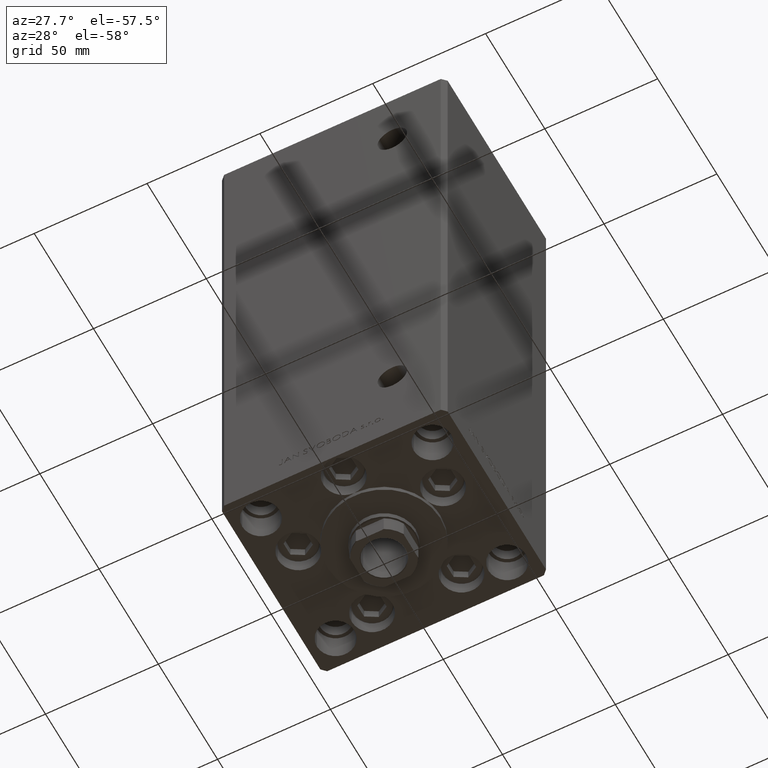
[diagram: clean part render]
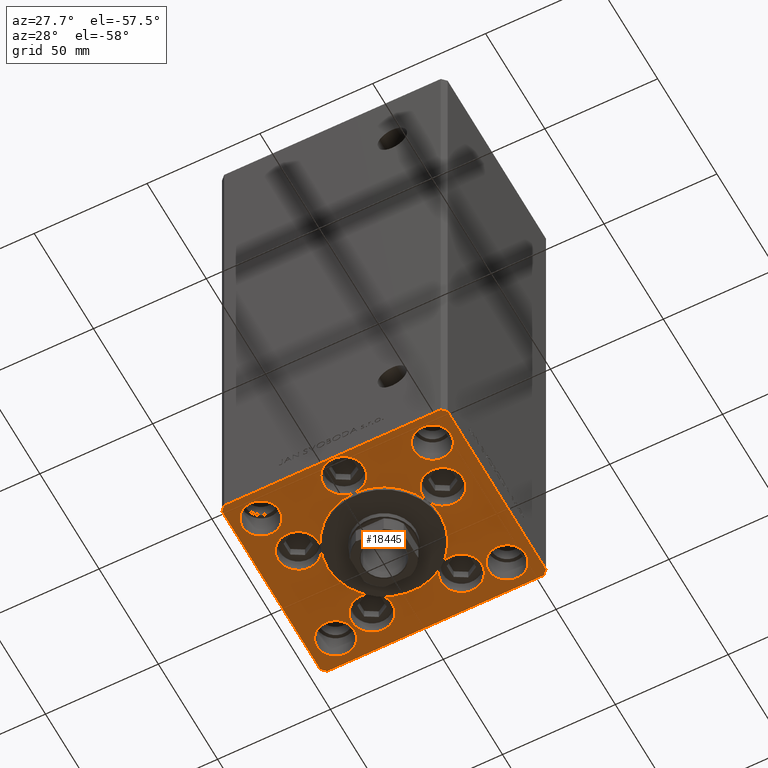
[diagram: same view with one face highlighted and labeled with its STEP entity id]
A machine part, auxiliary view. The second image highlights one B-rep face of the part: STEP entity #18445.
In plain terms, the highlighted planar face has unit normal (0, 0, -1).
Its self-contained STEP definition (entity closure, byte-faithful):
#64 = CIRCLE ( 'NONE', #48585, 8.249999999999992895 ) ;
#160 = DIRECTION ( 'NONE',  ( 1.000000000000000000, 0.000000000000000000, 0.000000000000000000 ) ) ;
#270 = EDGE_CURVE ( 'NONE', #10682, #41401, #22872, .T. ) ;
#281 = ORIENTED_EDGE ( 'NONE', *, *, #2251, .F. ) ;
#483 = AXIS2_PLACEMENT_3D ( 'NONE', #46552, #27812, #11872 ) ;
#734 = ORIENTED_EDGE ( 'NONE', *, *, #19136, .F. ) ;
#881 = DIRECTION ( 'NONE',  ( 1.000000000000000000, 0.000000000000000000, 0.000000000000000000 ) ) ;
#1264 = AXIS2_PLACEMENT_3D ( 'NONE', #26358, #42806, #26855 ) ;
#1385 = ORIENTED_EDGE ( 'NONE', *, *, #9386, .F. ) ;
#1553 = AXIS2_PLACEMENT_3D ( 'NONE', #33068, #48526, #17142 ) ;
#2085 = DIRECTION ( 'NONE',  ( 1.000000000000000000, 0.000000000000000000, 0.000000000000000000 ) ) ;
#2251 = EDGE_CURVE ( 'NONE', #31070, #27313, #64, .T. ) ;
#2559 = CARTESIAN_POINT ( 'NONE',  ( 46.25000000000000000, 31.50000000000000000, 0.000000000000000000 ) ) ;
#2565 = LINE ( 'NONE', #48651, #4116 ) ;
#2703 = VERTEX_POINT ( 'NONE', #12143 ) ;
#2714 = DIRECTION ( 'NONE',  ( 0.000000000000000000, 0.000000000000000000, 1.000000000000000000 ) ) ;
#3149 = EDGE_LOOP ( 'NONE', ( #34790, #3170 ) ) ;
#3170 = ORIENTED_EDGE ( 'NONE', *, *, #48667, .F. ) ;
#3205 = EDGE_CURVE ( 'NONE', #13295, #39459, #4815, .T. ) ;
#3244 = DIRECTION ( 'NONE',  ( 0.000000000000000000, 1.000000000000000000, 0.000000000000000000 ) ) ;
#3264 = DIRECTION ( 'NONE',  ( 0.000000000000000000, 0.000000000000000000, 1.000000000000000000 ) ) ;
#3287 = ORIENTED_EDGE ( 'NONE', *, *, #40171, .F. ) ;
#3339 = CARTESIAN_POINT ( 'NONE',  ( 38.00000000000000000, 31.50000000000000000, 0.000000000000000000 ) ) ;
#3362 = DIRECTION ( 'NONE',  ( -0.7071067811865536790, -0.7071067811865414665, 0.000000000000000000 ) ) ;
#3665 = CIRCLE ( 'NONE', #1264, 9.000000000000000000 ) ;
#3706 = VERTEX_POINT ( 'NONE', #22203 ) ;
#3876 = VERTEX_POINT ( 'NONE', #5441 ) ;
#3879 = ORIENTED_EDGE ( 'NONE', *, *, #40721, .F. ) ;
#3932 = CIRCLE ( 'NONE', #9580, 25.00000000000000000 ) ;
#4116 = VECTOR ( 'NONE', #17519, 1000.000000000000114 ) ;
#4162 = CARTESIAN_POINT ( 'NONE',  ( 0.000000000000000000, -6.938893903907228378E-15, 0.000000000000000000 ) ) ;
#4265 = EDGE_CURVE ( 'NONE', #28788, #43217, #7235, .T. ) ;
#4402 = AXIS2_PLACEMENT_3D ( 'NONE', #45481, #2714, #10806 ) ;
#4594 = DIRECTION ( 'NONE',  ( 1.000000000000000000, 0.000000000000000000, 0.000000000000000000 ) ) ;
#4632 = VERTEX_POINT ( 'NONE', #9136 ) ;
#4772 = CIRCLE ( 'NONE', #1553, 8.249999999999992895 ) ;
#4815 = CIRCLE ( 'NONE', #33122, 9.000000000000001776 ) ;
#4825 = ORIENTED_EDGE ( 'NONE', *, *, #3205, .F. ) ;
#4874 = AXIS2_PLACEMENT_3D ( 'NONE', #42002, #14423, #10865 ) ;
#4888 = EDGE_CURVE ( 'NONE', #5188, #3876, #26674, .T. ) ;
#4913 = CIRCLE ( 'NONE', #25958, 8.250000000000000000 ) ;
#5188 = VERTEX_POINT ( 'NONE', #48692 ) ;
#5206 = AXIS2_PLACEMENT_3D ( 'NONE', #31283, #38884, #160 ) ;
#5408 = VECTOR ( 'NONE', #9145, 1000.000000000000000 ) ;
#5441 = CARTESIAN_POINT ( 'NONE',  ( 14.57402977045128623, 20.31249999999998579, 0.000000000000000000 ) ) ;
#5526 = CARTESIAN_POINT ( 'NONE',  ( -29.75000000000000000, 31.50000000000000000, 0.000000000000000000 ) ) ;
#5785 = CIRCLE ( 'NONE', #32451, 9.000000000000000000 ) ;
#5849 = ORIENTED_EDGE ( 'NONE', *, *, #13715, .F. ) ;
#5877 = VERTEX_POINT ( 'NONE', #48574 ) ;
#6098 = LINE ( 'NONE', #21555, #42082 ) ;
#6106 = CIRCLE ( 'NONE', #11744, 8.999999999999998224 ) ;
#6142 = EDGE_CURVE ( 'NONE', #2703, #14241, #49351, .T. ) ;
#6280 = EDGE_CURVE ( 'NONE', #50019, #14205, #6098, .T. ) ;
#6300 = AXIS2_PLACEMENT_3D ( 'NONE', #34231, #7161, #19066 ) ;
#6399 = ORIENTED_EDGE ( 'NONE', *, *, #31464, .F. ) ;
#6616 = DIRECTION ( 'NONE',  ( 1.000000000000000000, 0.000000000000000000, 0.000000000000000000 ) ) ;
#6657 = CARTESIAN_POINT ( 'NONE',  ( 47.99999999999999289, 43.50000000000000000, 0.000000000000000000 ) ) ;
#7028 = CARTESIAN_POINT ( 'NONE',  ( 0.000000000000000000, -25.00000000000000000, 0.000000000000000000 ) ) ;
#7114 = CIRCLE ( 'NONE', #17650, 9.000000000000000000 ) ;
#7161 = DIRECTION ( 'NONE',  ( 0.000000000000000000, 0.000000000000000000, 1.000000000000000000 ) ) ;
#7235 = CIRCLE ( 'NONE', #35524, 9.000000000000000000 ) ;
#7309 = CARTESIAN_POINT ( 'NONE',  ( -48.00000000000000000, 43.49999999999997158, 0.000000000000000000 ) ) ;
#7416 = CARTESIAN_POINT ( 'NONE',  ( -50.00000000000000711, 41.49999999999999289, 0.000000000000000000 ) ) ;
#7548 = CARTESIAN_POINT ( 'NONE',  ( -32.05550741379015989, -11.33333333333332860, 0.000000000000000000 ) ) ;
#8143 = ORIENTED_EDGE ( 'NONE', *, *, #49752, .F. ) ;
#8292 = AXIS2_PLACEMENT_3D ( 'NONE', #10062, #17913, #49038 ) ;
#8403 = CIRCLE ( 'NONE', #20519, 8.250000000000000000 ) ;
#8505 = DIRECTION ( 'NONE',  ( 1.000000000000000000, 0.000000000000000000, 0.000000000000000000 ) ) ;
#8755 = CARTESIAN_POINT ( 'NONE',  ( 0.000000000000000000, -6.938893903907228378E-15, 0.000000000000000000 ) ) ;
#8823 = CARTESIAN_POINT ( 'NONE',  ( 46.25000000000000000, -31.50000000000000711, 0.000000000000000000 ) ) ;
#9136 = CARTESIAN_POINT ( 'NONE',  ( 50.00000000000000000, 41.50000000000000711, 0.000000000000000000 ) ) ;
#9145 = DIRECTION ( 'NONE',  ( -1.000000000000000000, -2.891205793294678326E-16, 0.000000000000000000 ) ) ;
#9386 = EDGE_CURVE ( 'NONE', #34462, #12055, #17154, .T. ) ;
#9491 = DIRECTION ( 'NONE',  ( 0.000000000000000000, 0.000000000000000000, 1.000000000000000000 ) ) ;
#9580 = AXIS2_PLACEMENT_3D ( 'NONE', #4162, #23917, #39589 ) ;
#9731 = AXIS2_PLACEMENT_3D ( 'NONE', #39274, #19561, #4594 ) ;
#9757 = DIRECTION ( 'NONE',  ( 0.000000000000000000, 0.000000000000000000, 1.000000000000000000 ) ) ;
#9858 = EDGE_CURVE ( 'NONE', #39459, #26205, #9884, .T. ) ;
#9884 = CIRCLE ( 'NONE', #37366, 9.000000000000001776 ) ;
#10062 = CARTESIAN_POINT ( 'NONE',  ( -19.82068048781374969, 27.62499999999998934, 0.000000000000000000 ) ) ;
#10214 = VERTEX_POINT ( 'NONE', #11676 ) ;
#10443 = ORIENTED_EDGE ( 'NONE', *, *, #10860, .F. ) ;
#10609 = CARTESIAN_POINT ( 'NONE',  ( -25.00000000000000000, -6.938893903907228378E-15, 0.000000000000000000 ) ) ;
#10682 = VERTEX_POINT ( 'NONE', #7309 ) ;
#10806 = DIRECTION ( 'NONE',  ( 1.000000000000000000, 0.000000000000000000, 0.000000000000000000 ) ) ;
#10860 = EDGE_CURVE ( 'NONE', #10214, #20884, #30106, .T. ) ;
#10865 = DIRECTION ( 'NONE',  ( 1.000000000000000000, 0.000000000000000000, 0.000000000000000000 ) ) ;
#11218 = CARTESIAN_POINT ( 'NONE',  ( -48.00000000000000000, 43.49999999999997158, 0.000000000000000000 ) ) ;
#11315 = EDGE_LOOP ( 'NONE', ( #21646, #281 ) ) ;
#11373 = DIRECTION ( 'NONE',  ( 1.000000000000000000, 0.000000000000000000, 0.000000000000000000 ) ) ;
#11676 = CARTESIAN_POINT ( 'NONE',  ( -28.82068048781374969, 27.62499999999998934, 0.000000000000000000 ) ) ;
#11744 = AXIS2_PLACEMENT_3D ( 'NONE', #21134, #44147, #881 ) ;
#11820 = EDGE_CURVE ( 'NONE', #43217, #17861, #31733, .T. ) ;
#11872 = DIRECTION ( 'NONE',  ( 1.000000000000000000, 0.000000000000000000, 0.000000000000000000 ) ) ;
#11945 = ORIENTED_EDGE ( 'NONE', *, *, #48706, .T. ) ;
#12055 = VERTEX_POINT ( 'NONE', #14415 ) ;
#12143 = CARTESIAN_POINT ( 'NONE',  ( -46.25000000000000711, -31.50000000000000711, 0.000000000000000000 ) ) ;
#12202 = LINE ( 'NONE', #23349, #46645 ) ;
#12715 = DIRECTION ( 'NONE',  ( 1.000000000000000000, 0.000000000000000000, 0.000000000000000000 ) ) ;
#12744 = CARTESIAN_POINT ( 'NONE',  ( 0.000000000000000000, -34.00000000000000000, 0.000000000000000000 ) ) ;
#13288 = EDGE_CURVE ( 'NONE', #5877, #10214, #18086, .T. ) ;
#13295 = VERTEX_POINT ( 'NONE', #39946 ) ;
#13492 = ORIENTED_EDGE ( 'NONE', *, *, #9858, .F. ) ;
#13493 = EDGE_CURVE ( 'NONE', #14241, #2703, #8403, .T. ) ;
#13569 = ORIENTED_EDGE ( 'NONE', *, *, #4888, .F. ) ;
#13634 = DIRECTION ( 'NONE',  ( 1.000000000000000000, 0.000000000000000000, 0.000000000000000000 ) ) ;
#13715 = EDGE_CURVE ( 'NONE', #20884, #31874, #32640, .T. ) ;
#14053 = ORIENTED_EDGE ( 'NONE', *, *, #20614, .F. ) ;
#14165 = LINE ( 'NONE', #45276, #44077 ) ;
#14205 = VERTEX_POINT ( 'NONE', #20490 ) ;
#14241 = VERTEX_POINT ( 'NONE', #20237 ) ;
#14415 = CARTESIAN_POINT ( 'NONE',  ( -46.25000000000000000, 31.50000000000000000, 0.000000000000000000 ) ) ;
#14423 = DIRECTION ( 'NONE',  ( 0.000000000000000000, 0.000000000000000000, 1.000000000000000000 ) ) ;
#15127 = DIRECTION ( 'NONE',  ( 1.000000000000000000, 0.000000000000000000, 0.000000000000000000 ) ) ;
#15388 = DIRECTION ( 'NONE',  ( 0.000000000000000000, 0.000000000000000000, 1.000000000000000000 ) ) ;
#15567 = CARTESIAN_POINT ( 'NONE',  ( -32.05550741379015989, -11.33333333333332860, 0.000000000000000000 ) ) ;
#15655 = DIRECTION ( 'NONE',  ( 1.000000000000000000, 0.000000000000000000, 0.000000000000000000 ) ) ;
#15851 = CARTESIAN_POINT ( 'NONE',  ( 29.74999999999999645, 31.50000000000000000, 0.000000000000000000 ) ) ;
#16251 = ORIENTED_EDGE ( 'NONE', *, *, #47354, .F. ) ;
#16273 = CARTESIAN_POINT ( 'NONE',  ( 38.00000000000000000, 31.50000000000000000, 0.000000000000000000 ) ) ;
#16688 = CIRCLE ( 'NONE', #483, 25.00000000000000000 ) ;
#17142 = DIRECTION ( 'NONE',  ( 1.000000000000000000, 0.000000000000000000, 0.000000000000000000 ) ) ;
#17154 = CIRCLE ( 'NONE', #45426, 8.250000000000000000 ) ;
#17296 = DIRECTION ( 'NONE',  ( 0.000000000000000000, 0.000000000000000000, 1.000000000000000000 ) ) ;
#17365 = CARTESIAN_POINT ( 'NONE',  ( 0.000000000000000000, -6.938893903907228378E-15, 0.000000000000000000 ) ) ;
#17519 = DIRECTION ( 'NONE',  ( 0.7071067811865474617, 0.7071067811865474617, 0.000000000000000000 ) ) ;
#17535 = ORIENTED_EDGE ( 'NONE', *, *, #4265, .F. ) ;
#17650 = AXIS2_PLACEMENT_3D ( 'NONE', #40453, #29798, #36641 ) ;
#17666 = VECTOR ( 'NONE', #3362, 1000.000000000000000 ) ;
#17754 = LINE ( 'NONE', #47633, #49135 ) ;
#17842 = ORIENTED_EDGE ( 'NONE', *, *, #6280, .T. ) ;
#17861 = VERTEX_POINT ( 'NONE', #28921 ) ;
#17913 = DIRECTION ( 'NONE',  ( 0.000000000000000000, 0.000000000000000000, 1.000000000000000000 ) ) ;
#17932 = CARTESIAN_POINT ( 'NONE',  ( 32.05550741379015989, -11.33333333333332860, 0.000000000000000000 ) ) ;
#17967 = DIRECTION ( 'NONE',  ( 1.000000000000000000, 0.000000000000000000, 0.000000000000000000 ) ) ;
#18086 = CIRCLE ( 'NONE', #39097, 9.000000000000000000 ) ;
#18170 = FACE_BOUND ( 'NONE', #40639, .T. ) ;
#18214 = DIRECTION ( 'NONE',  ( 0.000000000000000000, 0.000000000000000000, 1.000000000000000000 ) ) ;
#18262 = ORIENTED_EDGE ( 'NONE', *, *, #24845, .F. ) ;
#18404 = EDGE_CURVE ( 'NONE', #26205, #13295, #47205, .T. ) ;
#18445 = ADVANCED_FACE ( 'NONE', ( #25757, #41197, #37388, #18170, #33585, #49049 ), #47243, .T. ) ;
#18722 = CARTESIAN_POINT ( 'NONE',  ( 0.000000000000000000, -6.938893903907228378E-15, 0.000000000000000000 ) ) ;
#19066 = DIRECTION ( 'NONE',  ( 1.000000000000000000, 0.000000000000000000, 0.000000000000000000 ) ) ;
#19136 = EDGE_CURVE ( 'NONE', #17861, #19761, #30265, .T. ) ;
#19476 = DIRECTION ( 'NONE',  ( 0.000000000000000000, 0.000000000000000000, 1.000000000000000000 ) ) ;
#19561 = DIRECTION ( 'NONE',  ( 0.000000000000000000, 0.000000000000000000, 1.000000000000000000 ) ) ;
#19660 = DIRECTION ( 'NONE',  ( 0.000000000000000000, 0.000000000000000000, 1.000000000000000000 ) ) ;
#19761 = VERTEX_POINT ( 'NONE', #30984 ) ;
#19858 = VERTEX_POINT ( 'NONE', #6657 ) ;
#19994 = CIRCLE ( 'NONE', #27231, 8.250000000000000000 ) ;
#20048 = CIRCLE ( 'NONE', #6300, 8.999999999999998224 ) ;
#20237 = CARTESIAN_POINT ( 'NONE',  ( -29.75000000000000711, -31.50000000000000711, 0.000000000000000000 ) ) ;
#20342 = ORIENTED_EDGE ( 'NONE', *, *, #13288, .F. ) ;
#20490 = CARTESIAN_POINT ( 'NONE',  ( 48.00000000000000711, -43.49999999999992184, 0.000000000000000000 ) ) ;
#20510 = CARTESIAN_POINT ( 'NONE',  ( -38.00000000000000000, 31.50000000000000000, 0.000000000000000000 ) ) ;
#20519 = AXIS2_PLACEMENT_3D ( 'NONE', #48051, #32849, #36635 ) ;
#20614 = EDGE_CURVE ( 'NONE', #3876, #3706, #6106, .T. ) ;
#20884 = VERTEX_POINT ( 'NONE', #25051 ) ;
#20949 = AXIS2_PLACEMENT_3D ( 'NONE', #35101, #15388, #15127 ) ;
#20962 = CARTESIAN_POINT ( 'NONE',  ( -50.00000000000000000, -41.50000000000004263, 0.000000000000000000 ) ) ;
#21128 = EDGE_CURVE ( 'NONE', #44670, #4632, #14165, .T. ) ;
#21134 = CARTESIAN_POINT ( 'NONE',  ( 19.82068048781374969, 27.62499999999998934, 0.000000000000000000 ) ) ;
#21555 = CARTESIAN_POINT ( 'NONE',  ( -48.00000000000000711, -43.50000000000002842, 0.000000000000000000 ) ) ;
#21612 = ORIENTED_EDGE ( 'NONE', *, *, #6142, .F. ) ;
#21621 = CARTESIAN_POINT ( 'NONE',  ( -50.00000000000000000, -41.50000000000004263, 0.000000000000000000 ) ) ;
#21646 = ORIENTED_EDGE ( 'NONE', *, *, #44074, .F. ) ;
#21989 = EDGE_CURVE ( 'NONE', #43217, #47925, #3665, .T. ) ;
#22098 = CARTESIAN_POINT ( 'NONE',  ( -23.05550741379015633, -11.33333333333332860, 0.000000000000000000 ) ) ;
#22203 = CARTESIAN_POINT ( 'NONE',  ( 28.82068048781374969, 27.62499999999998934, 0.000000000000000000 ) ) ;
#22282 = ORIENTED_EDGE ( 'NONE', *, *, #13493, .F. ) ;
#22340 = ORIENTED_EDGE ( 'NONE', *, *, #21128, .T. ) ;
#22872 = LINE ( 'NONE', #11218, #17666 ) ;
#23156 = EDGE_LOOP ( 'NONE', ( #31760, #17842, #11945, #22340, #43646, #35715, #43157, #30614 ) ) ;
#23188 = CARTESIAN_POINT ( 'NONE',  ( -48.00000000000000711, -43.50000000000002842, 0.000000000000000000 ) ) ;
#23212 = EDGE_CURVE ( 'NONE', #17861, #5188, #36886, .T. ) ;
#23349 = CARTESIAN_POINT ( 'NONE',  ( 50.00000000000000000, 41.50000000000000711, 0.000000000000000000 ) ) ;
#23413 = DIRECTION ( 'NONE',  ( 0.000000000000000000, 0.000000000000000000, 1.000000000000000000 ) ) ;
#23660 = CARTESIAN_POINT ( 'NONE',  ( 9.000000000000000000, -34.00000000000000000, 0.000000000000000000 ) ) ;
#23917 = DIRECTION ( 'NONE',  ( 0.000000000000000000, 0.000000000000000000, 1.000000000000000000 ) ) ;
#23920 = CARTESIAN_POINT ( 'NONE',  ( 10.82068048781375147, 27.62499999999998934, 0.000000000000000000 ) ) ;
#23961 = DIRECTION ( 'NONE',  ( 1.000000000000000000, 0.000000000000000000, 0.000000000000000000 ) ) ;
#24415 = ORIENTED_EDGE ( 'NONE', *, *, #21989, .F. ) ;
#24845 = EDGE_CURVE ( 'NONE', #3706, #40397, #28040, .T. ) ;
#24909 = AXIS2_PLACEMENT_3D ( 'NONE', #28896, #32950, #6616 ) ;
#24961 = DIRECTION ( 'NONE',  ( 1.000000000000000000, 0.000000000000000000, 0.000000000000000000 ) ) ;
#25051 = CARTESIAN_POINT ( 'NONE',  ( -14.57402977045128978, 20.31249999999999289, 0.000000000000000000 ) ) ;
#25637 = DIRECTION ( 'NONE',  ( 1.000000000000000000, 0.000000000000000000, 0.000000000000000000 ) ) ;
#25757 = FACE_BOUND ( 'NONE', #43470, .T. ) ;
#25958 = AXIS2_PLACEMENT_3D ( 'NONE', #16273, #47151, #12715 ) ;
#26205 = VERTEX_POINT ( 'NONE', #48804 ) ;
#26358 = CARTESIAN_POINT ( 'NONE',  ( 0.000000000000000000, -34.00000000000000000, 0.000000000000000000 ) ) ;
#26473 = VERTEX_POINT ( 'NONE', #15851 ) ;
#26674 = CIRCLE ( 'NONE', #37980, 25.00000000000000000 ) ;
#26795 = ORIENTED_EDGE ( 'NONE', *, *, #23212, .F. ) ;
#26803 = ORIENTED_EDGE ( 'NONE', *, *, #18404, .F. ) ;
#26855 = DIRECTION ( 'NONE',  ( 1.000000000000000000, 0.000000000000000000, 0.000000000000000000 ) ) ;
#27231 = AXIS2_PLACEMENT_3D ( 'NONE', #3339, #37768, #25637 ) ;
#27313 = VERTEX_POINT ( 'NONE', #8823 ) ;
#27349 = EDGE_CURVE ( 'NONE', #20884, #5877, #7114, .T. ) ;
#27812 = DIRECTION ( 'NONE',  ( 0.000000000000000000, 0.000000000000000000, 1.000000000000000000 ) ) ;
#27833 = AXIS2_PLACEMENT_3D ( 'NONE', #17932, #37153, #13634 ) ;
#28040 = CIRCLE ( 'NONE', #43434, 8.999999999999998224 ) ;
#28087 = EDGE_CURVE ( 'NONE', #40873, #26473, #19994, .T. ) ;
#28223 = EDGE_CURVE ( 'NONE', #4632, #19858, #12202, .T. ) ;
#28266 = EDGE_CURVE ( 'NONE', #19858, #10682, #36215, .T. ) ;
#28745 = CARTESIAN_POINT ( 'NONE',  ( 38.00000000000000711, -31.50000000000000711, 0.000000000000000000 ) ) ;
#28788 = VERTEX_POINT ( 'NONE', #23660 ) ;
#28896 = CARTESIAN_POINT ( 'NONE',  ( 0.000000000000000000, -6.938893903907228378E-15, 0.000000000000000000 ) ) ;
#28921 = CARTESIAN_POINT ( 'NONE',  ( 23.57022603955158502, -8.333333333333332149, 0.000000000000000000 ) ) ;
#29408 = CARTESIAN_POINT ( 'NONE',  ( 32.05550741379015989, -11.33333333333332860, 0.000000000000000000 ) ) ;
#29445 = ORIENTED_EDGE ( 'NONE', *, *, #11820, .F. ) ;
#29798 = DIRECTION ( 'NONE',  ( 0.000000000000000000, 0.000000000000000000, 1.000000000000000000 ) ) ;
#30106 = CIRCLE ( 'NONE', #8292, 9.000000000000000000 ) ;
#30265 = CIRCLE ( 'NONE', #27833, 9.000000000000001776 ) ;
#30614 = ORIENTED_EDGE ( 'NONE', *, *, #35880, .T. ) ;
#30984 = CARTESIAN_POINT ( 'NONE',  ( 23.05550741379015633, -11.33333333333332682, 0.000000000000000000 ) ) ;
#31070 = VERTEX_POINT ( 'NONE', #41108 ) ;
#31283 = CARTESIAN_POINT ( 'NONE',  ( 0.000000000000000000, 0.000000000000000000, 0.000000000000000000 ) ) ;
#31380 = DIRECTION ( 'NONE',  ( 0.000000000000000000, 0.000000000000000000, 1.000000000000000000 ) ) ;
#31464 = EDGE_CURVE ( 'NONE', #19761, #34026, #47363, .T. ) ;
#31733 = CIRCLE ( 'NONE', #49565, 25.00000000000000000 ) ;
#31760 = ORIENTED_EDGE ( 'NONE', *, *, #49817, .T. ) ;
#31874 = VERTEX_POINT ( 'NONE', #10609 ) ;
#32178 = CARTESIAN_POINT ( 'NONE',  ( 47.99999999999999289, 43.50000000000000000, 0.000000000000000000 ) ) ;
#32451 = AXIS2_PLACEMENT_3D ( 'NONE', #37190, #18214, #17967 ) ;
#32640 = CIRCLE ( 'NONE', #43944, 25.00000000000000000 ) ;
#32792 = AXIS2_PLACEMENT_3D ( 'NONE', #29408, #36996, #40552 ) ;
#32849 = DIRECTION ( 'NONE',  ( 0.000000000000000000, 0.000000000000000000, 1.000000000000000000 ) ) ;
#32950 = DIRECTION ( 'NONE',  ( 0.000000000000000000, 0.000000000000000000, 1.000000000000000000 ) ) ;
#33068 = CARTESIAN_POINT ( 'NONE',  ( 38.00000000000000711, -31.50000000000000711, 0.000000000000000000 ) ) ;
#33122 = AXIS2_PLACEMENT_3D ( 'NONE', #15567, #23413, #38839 ) ;
#33514 = EDGE_CURVE ( 'NONE', #3876, #20884, #16688, .T. ) ;
#33585 = FACE_BOUND ( 'NONE', #11315, .T. ) ;
#34001 = CARTESIAN_POINT ( 'NONE',  ( 19.82068048781374969, 27.62499999999998934, 0.000000000000000000 ) ) ;
#34026 = VERTEX_POINT ( 'NONE', #48993 ) ;
#34059 = VECTOR ( 'NONE', #40178, 1000.000000000000000 ) ;
#34231 = CARTESIAN_POINT ( 'NONE',  ( 19.82068048781374969, 27.62499999999998934, 0.000000000000000000 ) ) ;
#34462 = VERTEX_POINT ( 'NONE', #5526 ) ;
#34790 = ORIENTED_EDGE ( 'NONE', *, *, #28087, .F. ) ;
#34887 = DIRECTION ( 'NONE',  ( 1.000000000000000000, 0.000000000000000000, 0.000000000000000000 ) ) ;
#35101 = CARTESIAN_POINT ( 'NONE',  ( 32.05550741379015989, -11.33333333333332860, 0.000000000000000000 ) ) ;
#35119 = DIRECTION ( 'NONE',  ( 0.000000000000000000, 0.000000000000000000, 1.000000000000000000 ) ) ;
#35368 = LINE ( 'NONE', #20962, #34059 ) ;
#35376 = ORIENTED_EDGE ( 'NONE', *, *, #33514, .F. ) ;
#35407 = CIRCLE ( 'NONE', #24909, 25.00000000000000000 ) ;
#35524 = AXIS2_PLACEMENT_3D ( 'NONE', #12744, #17296, #2085 ) ;
#35715 = ORIENTED_EDGE ( 'NONE', *, *, #28266, .T. ) ;
#35880 = EDGE_CURVE ( 'NONE', #41401, #40569, #17754, .T. ) ;
#35916 = DIRECTION ( 'NONE',  ( 1.000000000000000000, 0.000000000000000000, 0.000000000000000000 ) ) ;
#36076 = CARTESIAN_POINT ( 'NONE',  ( 0.000000000000000000, -6.938893903907228378E-15, 0.000000000000000000 ) ) ;
#36215 = LINE ( 'NONE', #32178, #5408 ) ;
#36635 = DIRECTION ( 'NONE',  ( 1.000000000000000000, 0.000000000000000000, 0.000000000000000000 ) ) ;
#36641 = DIRECTION ( 'NONE',  ( 1.000000000000000000, 0.000000000000000000, 0.000000000000000000 ) ) ;
#36886 = CIRCLE ( 'NONE', #39303, 25.00000000000000000 ) ;
#36996 = DIRECTION ( 'NONE',  ( 0.000000000000000000, 0.000000000000000000, 1.000000000000000000 ) ) ;
#37153 = DIRECTION ( 'NONE',  ( 0.000000000000000000, 0.000000000000000000, 1.000000000000000000 ) ) ;
#37190 = CARTESIAN_POINT ( 'NONE',  ( 0.000000000000000000, -34.00000000000000000, 0.000000000000000000 ) ) ;
#37366 = AXIS2_PLACEMENT_3D ( 'NONE', #7548, #35119, #15655 ) ;
#37388 = FACE_BOUND ( 'NONE', #39654, .T. ) ;
#37554 = DIRECTION ( 'NONE',  ( 1.000000000000000000, 0.000000000000000000, 0.000000000000000000 ) ) ;
#37768 = DIRECTION ( 'NONE',  ( 0.000000000000000000, 0.000000000000000000, 1.000000000000000000 ) ) ;
#37980 = AXIS2_PLACEMENT_3D ( 'NONE', #17365, #9757, #47996 ) ;
#38772 = DIRECTION ( 'NONE',  ( -0.7071067811865512365, 0.7071067811865439090, 0.000000000000000000 ) ) ;
#38839 = DIRECTION ( 'NONE',  ( 1.000000000000000000, 0.000000000000000000, 0.000000000000000000 ) ) ;
#38853 = ORIENTED_EDGE ( 'NONE', *, *, #41588, .F. ) ;
#38884 = DIRECTION ( 'NONE',  ( -0.000000000000000000, 0.000000000000000000, 1.000000000000000000 ) ) ;
#39097 = AXIS2_PLACEMENT_3D ( 'NONE', #46044, #19476, #34887 ) ;
#39274 = CARTESIAN_POINT ( 'NONE',  ( -38.00000000000000711, -31.50000000000000711, 0.000000000000000000 ) ) ;
#39303 = AXIS2_PLACEMENT_3D ( 'NONE', #18722, #3264, #11373 ) ;
#39459 = VERTEX_POINT ( 'NONE', #22098 ) ;
#39589 = DIRECTION ( 'NONE',  ( 1.000000000000000000, 0.000000000000000000, 0.000000000000000000 ) ) ;
#39654 = EDGE_LOOP ( 'NONE', ( #1385, #16251 ) ) ;
#39946 = CARTESIAN_POINT ( 'NONE',  ( -41.05550741379015989, -11.33333333333332682, 0.000000000000000000 ) ) ;
#40171 = EDGE_CURVE ( 'NONE', #34026, #17861, #46814, .T. ) ;
#40178 = DIRECTION ( 'NONE',  ( 0.7071067811865487940, -0.7071067811865463515, 0.000000000000000000 ) ) ;
#40397 = VERTEX_POINT ( 'NONE', #23920 ) ;
#40453 = CARTESIAN_POINT ( 'NONE',  ( -19.82068048781374969, 27.62499999999998934, 0.000000000000000000 ) ) ;
#40552 = DIRECTION ( 'NONE',  ( 1.000000000000000000, 0.000000000000000000, 0.000000000000000000 ) ) ;
#40569 = VERTEX_POINT ( 'NONE', #21621 ) ;
#40639 = EDGE_LOOP ( 'NONE', ( #22282, #21612 ) ) ;
#40721 = EDGE_CURVE ( 'NONE', #40397, #3876, #20048, .T. ) ;
#40873 = VERTEX_POINT ( 'NONE', #2559 ) ;
#41108 = CARTESIAN_POINT ( 'NONE',  ( 29.75000000000001066, -31.50000000000000711, 0.000000000000000000 ) ) ;
#41197 = FACE_BOUND ( 'NONE', #3149, .T. ) ;
#41401 = VERTEX_POINT ( 'NONE', #7416 ) ;
#41588 = EDGE_CURVE ( 'NONE', #26205, #43217, #35407, .T. ) ;
#41604 = ORIENTED_EDGE ( 'NONE', *, *, #27349, .F. ) ;
#42002 = CARTESIAN_POINT ( 'NONE',  ( -38.00000000000000000, 31.50000000000000000, 0.000000000000000000 ) ) ;
#42082 = VECTOR ( 'NONE', #48641, 1000.000000000000000 ) ;
#42806 = DIRECTION ( 'NONE',  ( 0.000000000000000000, 0.000000000000000000, 1.000000000000000000 ) ) ;
#43157 = ORIENTED_EDGE ( 'NONE', *, *, #270, .T. ) ;
#43217 = VERTEX_POINT ( 'NONE', #7028 ) ;
#43434 = AXIS2_PLACEMENT_3D ( 'NONE', #34001, #45398, #37554 ) ;
#43470 = EDGE_LOOP ( 'NONE', ( #35376, #3879, #18262, #14053, #13569, #26795, #3287, #6399, #734, #29445, #17535, #8143, #24415, #38853, #13492, #4825, #26803, #43568, #5849, #10443, #20342, #41604 ) ) ;
#43549 = EDGE_CURVE ( 'NONE', #31874, #26205, #3932, .T. ) ;
#43568 = ORIENTED_EDGE ( 'NONE', *, *, #43549, .F. ) ;
#43646 = ORIENTED_EDGE ( 'NONE', *, *, #28223, .T. ) ;
#43834 = CARTESIAN_POINT ( 'NONE',  ( 50.00000000000000000, -41.49999999999992895, 0.000000000000000000 ) ) ;
#43944 = AXIS2_PLACEMENT_3D ( 'NONE', #36076, #19660, #8505 ) ;
#44074 = EDGE_CURVE ( 'NONE', #27313, #31070, #4772, .T. ) ;
#44077 = VECTOR ( 'NONE', #3244, 1000.000000000000000 ) ;
#44147 = DIRECTION ( 'NONE',  ( 0.000000000000000000, 0.000000000000000000, 1.000000000000000000 ) ) ;
#44525 = CIRCLE ( 'NONE', #4874, 8.250000000000000000 ) ;
#44670 = VERTEX_POINT ( 'NONE', #43834 ) ;
#45276 = CARTESIAN_POINT ( 'NONE',  ( 50.00000000000000000, -41.49999999999992895, 0.000000000000000000 ) ) ;
#45398 = DIRECTION ( 'NONE',  ( 0.000000000000000000, 0.000000000000000000, 1.000000000000000000 ) ) ;
#45426 = AXIS2_PLACEMENT_3D ( 'NONE', #20510, #31380, #35916 ) ;
#45481 = CARTESIAN_POINT ( 'NONE',  ( -32.05550741379015989, -11.33333333333332860, 0.000000000000000000 ) ) ;
#46044 = CARTESIAN_POINT ( 'NONE',  ( -19.82068048781374969, 27.62499999999998934, 0.000000000000000000 ) ) ;
#46552 = CARTESIAN_POINT ( 'NONE',  ( 0.000000000000000000, -6.938893903907228378E-15, 0.000000000000000000 ) ) ;
#46645 = VECTOR ( 'NONE', #38772, 999.9999999999998863 ) ;
#46814 = CIRCLE ( 'NONE', #20949, 9.000000000000001776 ) ;
#46989 = CARTESIAN_POINT ( 'NONE',  ( -9.000000000000000000, -34.00000000000000000, 0.000000000000000000 ) ) ;
#47151 = DIRECTION ( 'NONE',  ( 0.000000000000000000, 0.000000000000000000, 1.000000000000000000 ) ) ;
#47205 = CIRCLE ( 'NONE', #4402, 9.000000000000001776 ) ;
#47243 = PLANE ( 'NONE',  #5206 ) ;
#47253 = DIRECTION ( 'NONE',  ( 0.000000000000000000, 0.000000000000000000, 1.000000000000000000 ) ) ;
#47354 = EDGE_CURVE ( 'NONE', #12055, #34462, #44525, .T. ) ;
#47363 = CIRCLE ( 'NONE', #32792, 9.000000000000001776 ) ;
#47633 = CARTESIAN_POINT ( 'NONE',  ( -50.00000000000000711, 41.49999999999999289, 0.000000000000000000 ) ) ;
#47925 = VERTEX_POINT ( 'NONE', #46989 ) ;
#47996 = DIRECTION ( 'NONE',  ( 1.000000000000000000, 0.000000000000000000, 0.000000000000000000 ) ) ;
#48051 = CARTESIAN_POINT ( 'NONE',  ( -38.00000000000000711, -31.50000000000000711, 0.000000000000000000 ) ) ;
#48387 = DIRECTION ( 'NONE',  ( 8.360113137237620037E-17, -1.000000000000000000, 0.000000000000000000 ) ) ;
#48526 = DIRECTION ( 'NONE',  ( 0.000000000000000000, 0.000000000000000000, 1.000000000000000000 ) ) ;
#48574 = CARTESIAN_POINT ( 'NONE',  ( -10.82068048781375147, 27.62499999999998934, 0.000000000000000000 ) ) ;
#48585 = AXIS2_PLACEMENT_3D ( 'NONE', #28745, #47253, #24961 ) ;
#48641 = DIRECTION ( 'NONE',  ( 1.000000000000000000, 1.156482317317871331E-15, 0.000000000000000000 ) ) ;
#48651 = CARTESIAN_POINT ( 'NONE',  ( 48.00000000000000711, -43.49999999999992184, 0.000000000000000000 ) ) ;
#48667 = EDGE_CURVE ( 'NONE', #26473, #40873, #4913, .T. ) ;
#48692 = CARTESIAN_POINT ( 'NONE',  ( 25.00000000000000000, -3.877276906038844941E-15, 0.000000000000000000 ) ) ;
#48706 = EDGE_CURVE ( 'NONE', #14205, #44670, #2565, .T. ) ;
#48804 = CARTESIAN_POINT ( 'NONE',  ( -23.57022603955158502, -8.333333333333332149, 0.000000000000000000 ) ) ;
#48993 = CARTESIAN_POINT ( 'NONE',  ( 41.05550741379015989, -11.33333333333332860, 0.000000000000000000 ) ) ;
#49038 = DIRECTION ( 'NONE',  ( 1.000000000000000000, 0.000000000000000000, 0.000000000000000000 ) ) ;
#49049 = FACE_OUTER_BOUND ( 'NONE', #23156, .T. ) ;
#49135 = VECTOR ( 'NONE', #48387, 1000.000000000000000 ) ;
#49351 = CIRCLE ( 'NONE', #9731, 8.250000000000000000 ) ;
#49565 = AXIS2_PLACEMENT_3D ( 'NONE', #8755, #9491, #23961 ) ;
#49752 = EDGE_CURVE ( 'NONE', #47925, #28788, #5785, .T. ) ;
#49817 = EDGE_CURVE ( 'NONE', #40569, #50019, #35368, .T. ) ;
#50019 = VERTEX_POINT ( 'NONE', #23188 ) ;